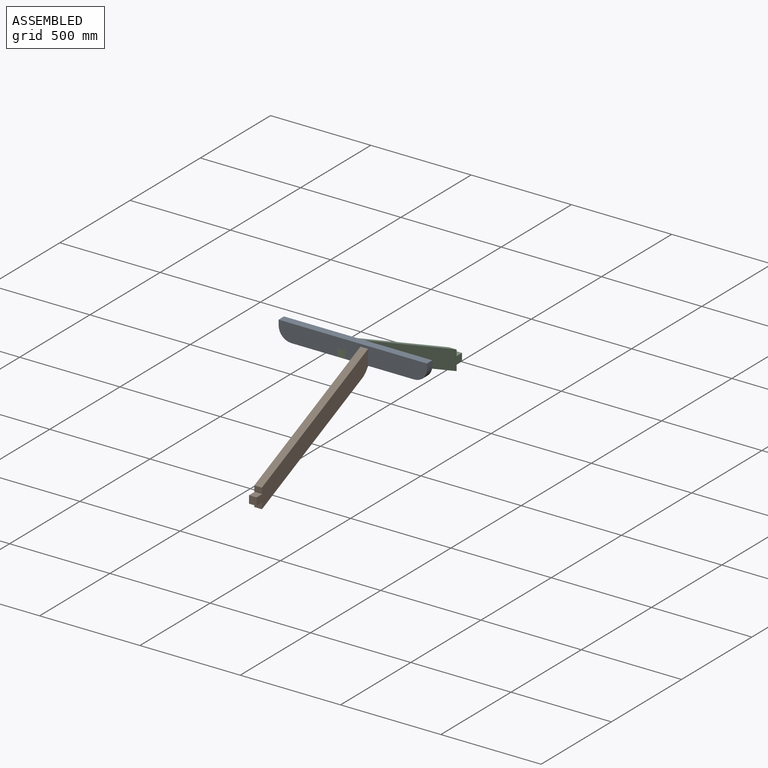
[diagram: assembled view]
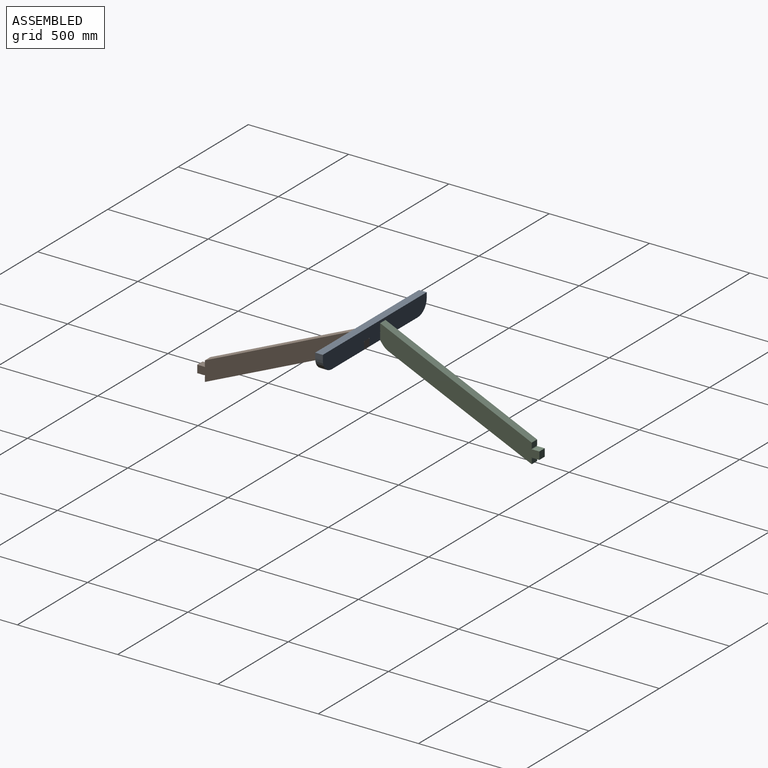
[diagram: assembled view, second angle]
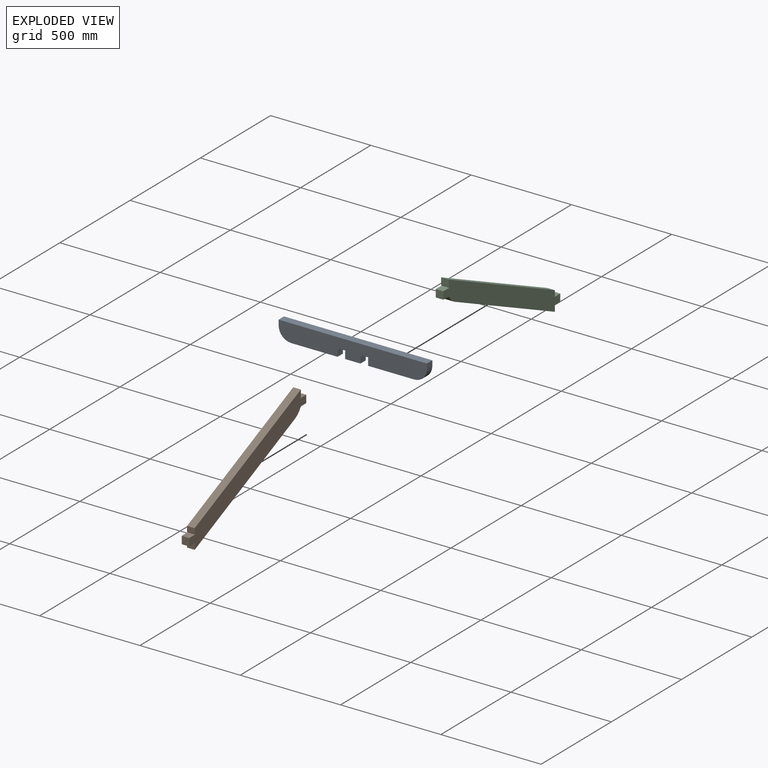
[diagram: exploded view]
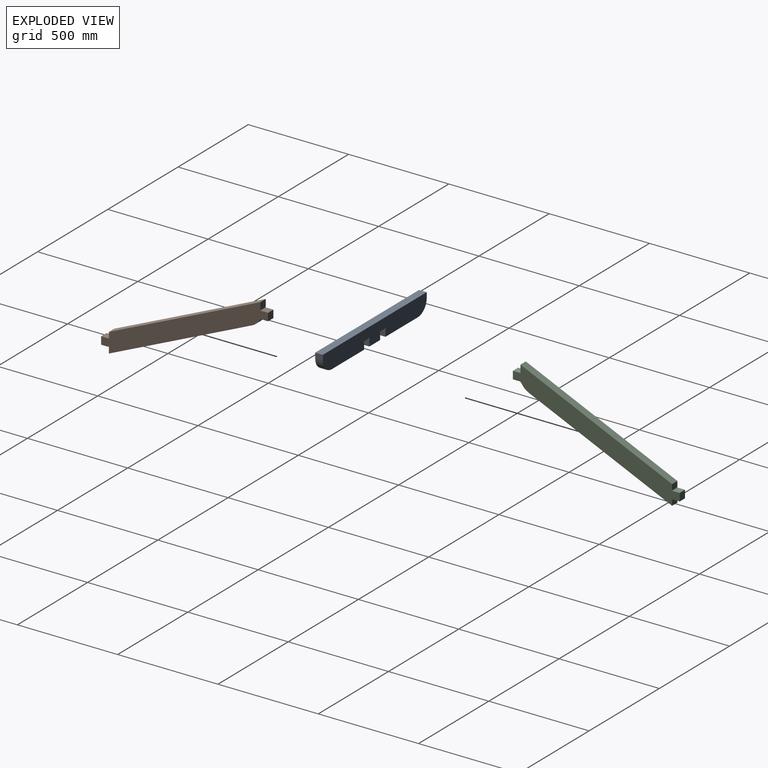
[diagram: exploded view, second angle]
ASSEMBLY  parts=3 mates=6
PART A: 20 faces, bbox 739.8x38.1x88.9 mm
  f0: plane 38.1x28.76mm, normal (0,0,-1), area 1095.8mm2, adj f8,f9,f18,f19
  f1: plane 38.1x33.43mm, normal (-1,0,0), area 1273.7mm2, adj f8,f9,f11,f19
  f2: plane 38.1x33.43mm, normal (1,0,0), area 1273.7mm2, adj f7,f8,f9,f18
  f3: plane 38.1x28.76mm, normal (0,0,-1), area 1095.8mm2, adj f8,f9,f16,f17
  f4: plane 38.1x33.43mm, normal (-1,0,0), area 1273.7mm2, adj f7,f8,f9,f17
  f5: plane 38.1x33.43mm, normal (1,0,0), area 1273.7mm2, adj f6,f8,f9,f16
  f6: plane 230.19x38.1mm, normal (0,0,-1), area 8770.1mm2, adj f5,f8,f9,f14
  f7: plane 76.2x38.1mm, normal (0,0,-1), area 2903.2mm2, adj f2,f4,f8,f9
  f8: plane 739.78x88.9mm, normal (0,1,0), area 61107.2mm2, adj f0,f1,f2,f3,f4,f5,f6,f7
  f9: plane 739.78x88.9mm, normal (0,-1,0), area 61107.2mm2, adj f0,f1,f2,f3,f4,f5,f6,f7
  f10: plane 739.78x38.1mm, normal (0,0,1), area 28185.4mm2, adj f8,f9,f12,f13
  f11: plane 230.19x38.1mm, normal (0,0,-1), area 8770.1mm2, adj f1,f8,f9,f15
  f12: plane 38.1x25.4mm, normal (1,0,0), area 967.7mm2, adj f8,f9,f10,f15
  f13: plane 38.1x25.4mm, normal (-1,0,0), area 967.7mm2, adj f8,f9,f10,f14
  f14: cylinder r=63.5mm len=63.5mm, axis (0,1,0), area 3800.3mm2, adj f6,f8,f9,f13
  f15: cylinder r=63.5mm len=63.5mm, axis (0,-1,0), area 3800.3mm2, adj f8,f9,f11,f12
  f16: cylinder r=3.3mm len=38.1mm, axis (0,1,0), area 395.2mm2, adj f3,f5,f8,f9
  f17: cylinder r=3.3mm len=38.1mm, axis (0,1,0), area 395.2mm2, adj f3,f4,f8,f9
  f18: cylinder r=3.3mm len=38.1mm, axis (0,1,0), area 395.2mm2, adj f0,f2,f8,f9
  f19: cylinder r=3.3mm len=38.1mm, axis (0,1,0), area 395.2mm2, adj f0,f1,f8,f9
PART B: 19 faces, bbox 908.8x38.1x88.9 mm
  f0: plane 908.85x88.9mm, normal (0,1,0), area 76154.9mm2, adj f1,f2,f3,f4,f5,f6,f7,f8
  f1: plane 38.1x22.78mm, normal (0.91,0,0.41), area 950.1mm2, adj f0,f8,f9,f18
  f2: plane 38.1x30.54mm, normal (-0.41,0,0.91), area 1273.7mm2, adj f0,f9,f15,f18
  f3: plane 38.1x22.78mm, normal (0.91,0,0.41), area 950.1mm2, adj f0,f7,f9,f17
  f4: plane 38.1x30.54mm, normal (0.41,0,-0.91), area 1273.7mm2, adj f0,f9,f15,f17
  f5: plane 38.1x30.54mm, normal (-0.91,0,-0.41), area 1273.7mm2, adj f0,f8,f9,f16
  f6: plane 38.1x30.54mm, normal (-0.41,0,0.91), area 1273.7mm2, adj f0,f9,f10,f16
  f7: plane 782.21x38.1mm, normal (0,0,-1), area 29802.3mm2, adj f0,f3,f9,f14
  f8: plane 827.19x38.1mm, normal (0,0,1), area 31516.1mm2, adj f0,f1,f5,f9
  f9: plane 908.85x88.9mm, normal (0,-1,0), area 76154.9mm2, adj f1,f2,f3,f4,f5,f6,f7,f8
  f10: plane 38.1x34.81mm, normal (-0.91,0,-0.41), area 1451.6mm2, adj f0,f6,f9,f11
  f11: plane 38.1x30.03mm, normal (0.41,0,-0.91), area 1252.6mm2, adj f0,f9,f10,f13
  f12: plane 38.1x10.49mm, normal (-0.51,0,-0.86), area 463.4mm2, adj f0,f9,f13,f14
  f13: cylinder r=10.16mm len=38.1mm, axis (0,-1,0), area 367.6mm2, adj f0,f9,f11,f12
  f14: cylinder r=76.2mm len=38.58mm, axis (0,-1,0), area 1541.1mm2, adj f0,f7,f9,f12
  f15: plane 38.1x34.81mm, normal (0.91,0,0.41), area 1451.6mm2, adj f0,f2,f4,f9
  f16: cylinder r=3.3mm len=38.1mm, axis (0,-1,0), area 395.2mm2, adj f0,f5,f6,f9
  f17: cylinder r=3.3mm len=38.1mm, axis (0,-1,0), area 395.2mm2, adj f0,f3,f4,f9
  f18: cylinder r=3.3mm len=38.1mm, axis (0,-1,0), area 395.2mm2, adj f0,f1,f2,f9
PART C: same geometry as B
PLACE A t=(-258.8,90.11,-39.44)mm fixed
PLACE B rot(axis=(0.2,0.2,-0.96),92.5deg) t=(168.24,89.14,-48.3)mm
PLACE C rot(axis=(-0.2,0.2,0.96),92.5deg) t=(53.94,91.08,-48.3)mm
MATE planar C.f5 <-> A.f8  axis (0,-1,0) through (72.99,109.16,-24.41)mm
MATE planar B.f9 <-> A.f2  axis (-1,0,0) through (149.19,-308.04,-225.15)mm
MATE planar A.f0 <-> B.f6  axis (0,0,-1) through (168.24,90.11,-45.79)mm
MATE planar C.f9 <-> A.f4  axis (1,0,0) through (72.99,87.77,-45.79)mm
MATE planar A.f3 <-> C.f6  axis (0,0,-1) through (53.94,90.11,-45.79)mm
MATE planar B.f5 <-> A.f9  axis (0,1,0) through (168.24,71.06,-24.41)mm
